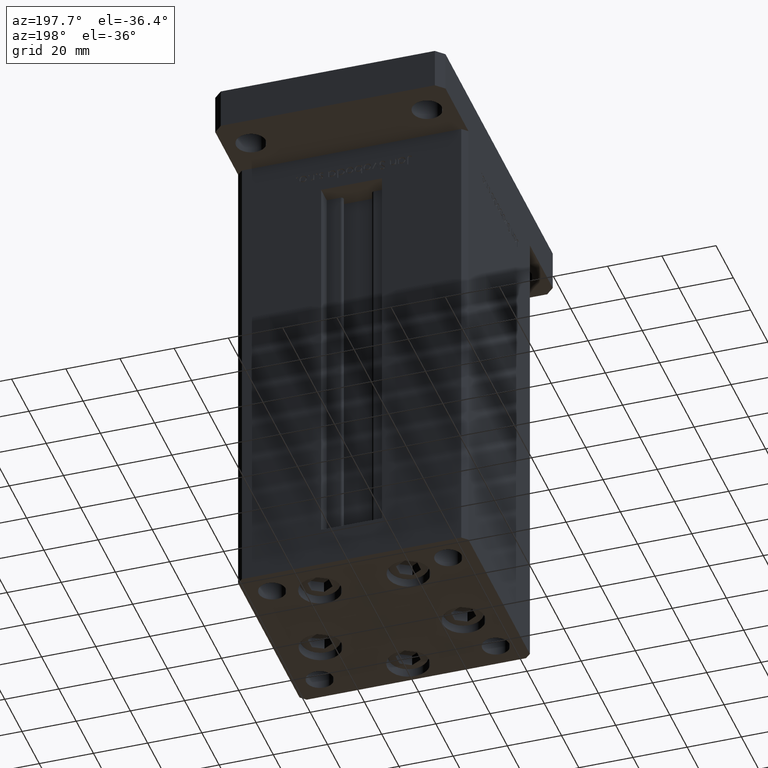
[diagram: clean part render]
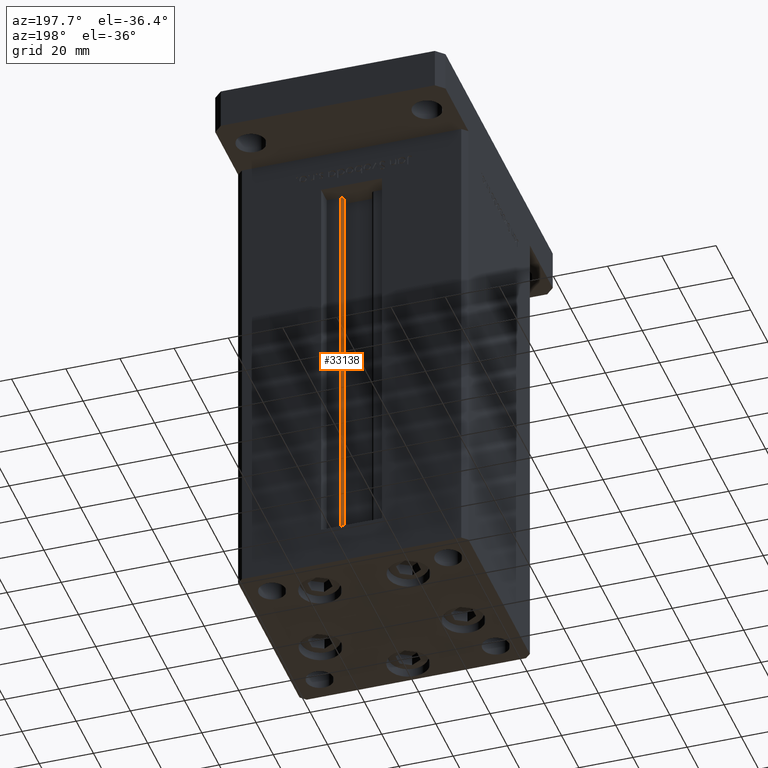
[diagram: same view with one face highlighted and labeled with its STEP entity id]
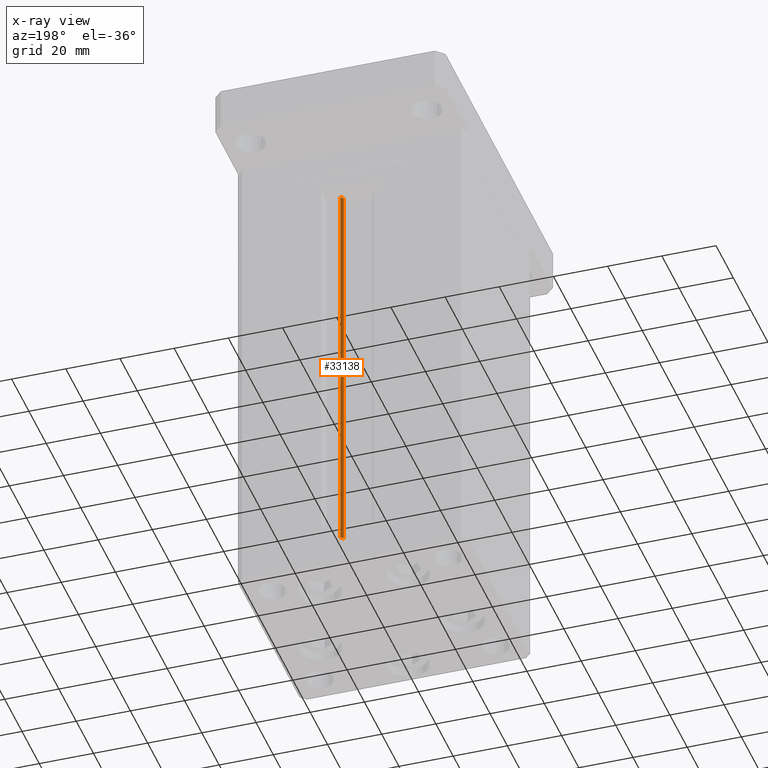
[diagram: x-ray of the same camera — body ghosted, the highlighted face saturated]
A machine part, auxiliary view. The second image highlights one B-rep face of the part: STEP entity #33138.
The next image is the same camera in x-ray: the body ghosted, the highlighted face saturated — about 0% of this face is hidden behind the body in this view.
In plain terms, the highlighted cylindrical surface (edge-blend (fillet) strip) has radius 0.9333 mm, axis along (0, 0, 1).
Its self-contained STEP definition (entity closure, byte-faithful):
#334 = CARTESIAN_POINT ( 'NONE',  ( 5.375042956467944499, 29.59999999999899245, 148.5000000000000000 ) ) ;
#2142 = DIRECTION ( 'NONE',  ( 1.000000000000000000, 0.000000000000000000, 0.000000000000000000 ) ) ;
#3196 = CARTESIAN_POINT ( 'NONE',  ( 6.183333333333999704, 30.06666666666599141, 0.000000000000000000 ) ) ;
#6208 = DIRECTION ( 'NONE',  ( -0.000000000000000000, -0.000000000000000000, 1.000000000000000000 ) ) ;
#8568 = EDGE_CURVE ( 'NONE', #10047, #46377, #21619, .T. ) ;
#9347 = EDGE_CURVE ( 'NONE', #23992, #26122, #39775, .T. ) ;
#9445 = AXIS2_PLACEMENT_3D ( 'NONE', #3196, #39274, #2142 ) ;
#9582 = LINE ( 'NONE', #12584, #53060 ) ;
#10047 = VERTEX_POINT ( 'NONE', #334 ) ;
#11549 = CARTESIAN_POINT ( 'NONE',  ( 6.183333333333999704, 30.06666666666599141, 148.5000000000000000 ) ) ;
#12584 = CARTESIAN_POINT ( 'NONE',  ( 5.375042956467943611, 29.59999999999899245, 0.000000000000000000 ) ) ;
#12799 = EDGE_LOOP ( 'NONE', ( #51272, #16372, #25858, #21182 ) ) ;
#16372 = ORIENTED_EDGE ( 'NONE', *, *, #9347, .F. ) ;
#16592 = CARTESIAN_POINT ( 'NONE',  ( 6.183333333333999704, 30.99999999999999289, 0.000000000000000000 ) ) ;
#18662 = EDGE_CURVE ( 'NONE', #23992, #10047, #9582, .T. ) ;
#18698 = FACE_OUTER_BOUND ( 'NONE', #12799, .T. ) ;
#21182 = ORIENTED_EDGE ( 'NONE', *, *, #8568, .T. ) ;
#21619 = CIRCLE ( 'NONE', #31995, 0.9333333333340015914 ) ;
#23992 = VERTEX_POINT ( 'NONE', #45104 ) ;
#25858 = ORIENTED_EDGE ( 'NONE', *, *, #18662, .T. ) ;
#26122 = VERTEX_POINT ( 'NONE', #28389 ) ;
#28389 = CARTESIAN_POINT ( 'NONE',  ( 6.183333333333999704, 30.99999999999999289, 0.000000000000000000 ) ) ;
#31956 = CARTESIAN_POINT ( 'NONE',  ( 6.183333333333999704, 30.06666666666599141, 0.000000000000000000 ) ) ;
#31995 = AXIS2_PLACEMENT_3D ( 'NONE', #11549, #52784, #49229 ) ;
#32587 = AXIS2_PLACEMENT_3D ( 'NONE', #31956, #6208, #51768 ) ;
#33138 = ADVANCED_FACE ( 'NONE', ( #18698 ), #35219, .T. ) ;
#35219 = CYLINDRICAL_SURFACE ( 'NONE', #32587, 0.9333333333340015914 ) ;
#36918 = LINE ( 'NONE', #16592, #51872 ) ;
#39274 = DIRECTION ( 'NONE',  ( -0.000000000000000000, -0.000000000000000000, -1.000000000000000000 ) ) ;
#39775 = CIRCLE ( 'NONE', #9445, 0.9333333333340015914 ) ;
#41149 = CARTESIAN_POINT ( 'NONE',  ( 6.183333333333999704, 30.99999999999999289, 148.5000000000000000 ) ) ;
#44032 = EDGE_CURVE ( 'NONE', #26122, #46377, #36918, .T. ) ;
#45104 = CARTESIAN_POINT ( 'NONE',  ( 5.375042956467943611, 29.59999999999899245, 0.000000000000000000 ) ) ;
#46199 = DIRECTION ( 'NONE',  ( -0.000000000000000000, -0.000000000000000000, 1.000000000000000000 ) ) ;
#46377 = VERTEX_POINT ( 'NONE', #41149 ) ;
#49229 = DIRECTION ( 'NONE',  ( 1.000000000000000000, 0.000000000000000000, 0.000000000000000000 ) ) ;
#49397 = DIRECTION ( 'NONE',  ( -0.000000000000000000, -0.000000000000000000, 1.000000000000000000 ) ) ;
#51272 = ORIENTED_EDGE ( 'NONE', *, *, #44032, .F. ) ;
#51768 = DIRECTION ( 'NONE',  ( 1.000000000000000000, 0.000000000000000000, 0.000000000000000000 ) ) ;
#51872 = VECTOR ( 'NONE', #49397, 1000.000000000000000 ) ;
#52784 = DIRECTION ( 'NONE',  ( 0.000000000000000000, 0.000000000000000000, -1.000000000000000000 ) ) ;
#53060 = VECTOR ( 'NONE', #46199, 1000.000000000000000 ) ;